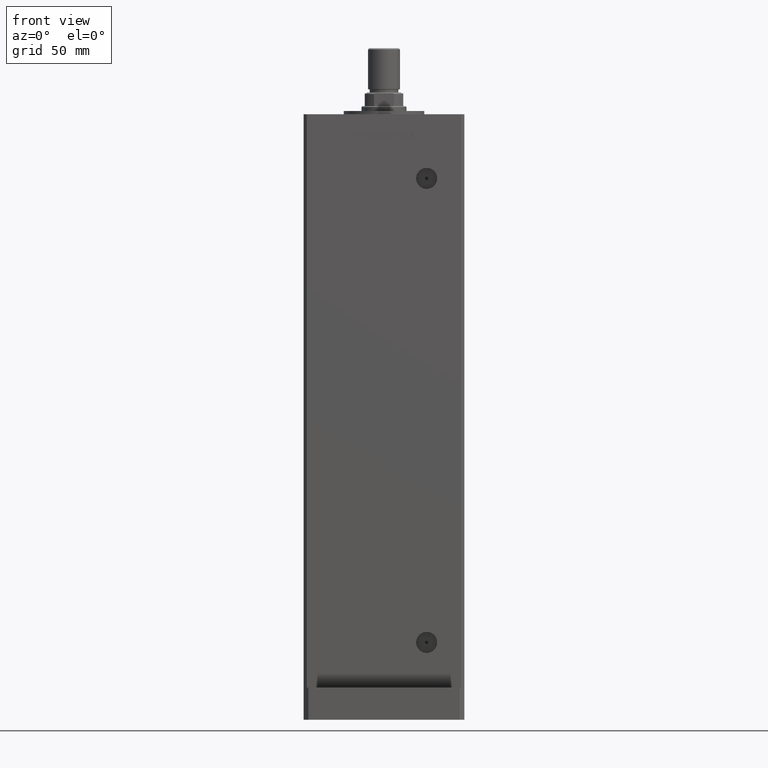
[diagram: clean part render]
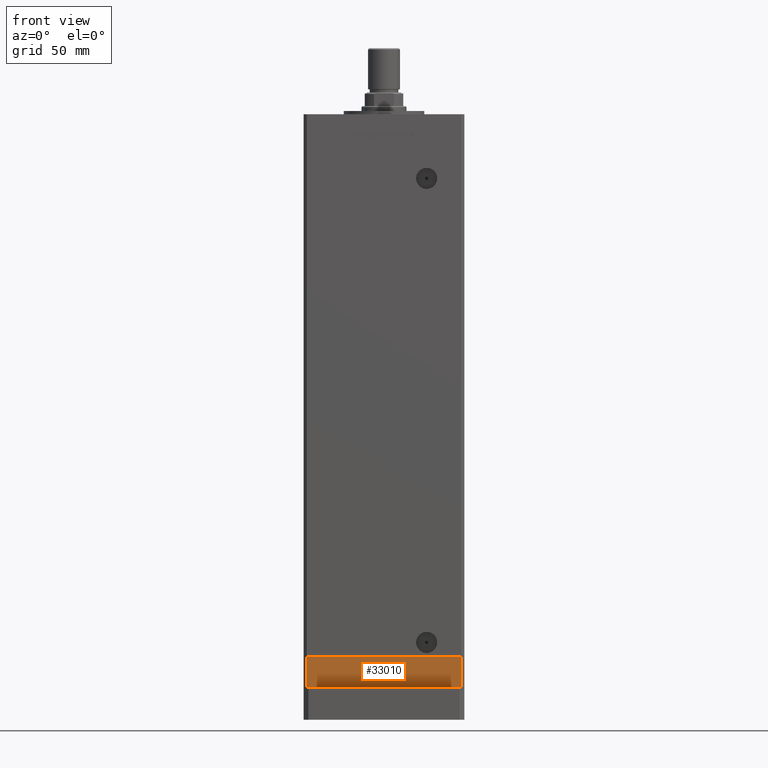
[diagram: same view with one face highlighted and labeled with its STEP entity id]
A machine part, front view. The second image highlights one B-rep face of the part: STEP entity #33010.
In plain terms, the highlighted planar face has unit normal (0, -1, -0).
Its self-contained STEP definition (entity closure, byte-faithful):
#320 = CARTESIAN_POINT ( 'NONE',  ( -47.99999999999999289, -43.50000000000001421, -19.00000000000000000 ) ) ;
#1289 = VECTOR ( 'NONE', #21357, 1000.000000000000000 ) ;
#1321 = LINE ( 'NONE', #47035, #40491 ) ;
#3622 = CARTESIAN_POINT ( 'NONE',  ( 47.99999999999999289, -43.50000000000001421, 0.000000000000000000 ) ) ;
#4111 = VECTOR ( 'NONE', #39441, 1000.000000000000000 ) ;
#9412 = CARTESIAN_POINT ( 'NONE',  ( 47.99999999999999289, -43.50000000000001421, -19.00000000000000000 ) ) ;
#14346 = DIRECTION ( 'NONE',  ( 0.000000000000000000, 0.000000000000000000, 1.000000000000000000 ) ) ;
#14915 = VERTEX_POINT ( 'NONE', #18060 ) ;
#17375 = VECTOR ( 'NONE', #14346, 1000.000000000000000 ) ;
#18060 = CARTESIAN_POINT ( 'NONE',  ( -47.99999999999999289, -43.50000000000001421, 0.000000000000000000 ) ) ;
#18200 = EDGE_CURVE ( 'NONE', #14915, #38504, #33980, .T. ) ;
#18432 = LINE ( 'NONE', #9412, #17375 ) ;
#21357 = DIRECTION ( 'NONE',  ( 0.000000000000000000, 0.000000000000000000, 1.000000000000000000 ) ) ;
#21439 = DIRECTION ( 'NONE',  ( 0.000000000000000000, -0.000000000000000000, -1.000000000000000000 ) ) ;
#21544 = EDGE_CURVE ( 'NONE', #22603, #38504, #18432, .T. ) ;
#22603 = VERTEX_POINT ( 'NONE', #38028 ) ;
#22738 = ORIENTED_EDGE ( 'NONE', *, *, #41641, .F. ) ;
#25183 = ORIENTED_EDGE ( 'NONE', *, *, #21544, .T. ) ;
#26375 = FACE_OUTER_BOUND ( 'NONE', #33647, .T. ) ;
#26500 = DIRECTION ( 'NONE',  ( 1.000000000000000000, 0.000000000000000000, 0.000000000000000000 ) ) ;
#28261 = AXIS2_PLACEMENT_3D ( 'NONE', #50764, #37605, #21439 ) ;
#33010 = ADVANCED_FACE ( 'NONE', ( #26375 ), #50491, .T. ) ;
#33647 = EDGE_LOOP ( 'NONE', ( #46594, #22738, #43155, #25183 ) ) ;
#33980 = LINE ( 'NONE', #42476, #4111 ) ;
#36995 = EDGE_CURVE ( 'NONE', #43178, #22603, #1321, .T. ) ;
#37605 = DIRECTION ( 'NONE',  ( 0.000000000000000000, -1.000000000000000000, 0.000000000000000000 ) ) ;
#38028 = CARTESIAN_POINT ( 'NONE',  ( 47.99999999999999289, -43.50000000000001421, -19.00000000000000000 ) ) ;
#38504 = VERTEX_POINT ( 'NONE', #3622 ) ;
#39441 = DIRECTION ( 'NONE',  ( 1.000000000000000000, 0.000000000000000000, 0.000000000000000000 ) ) ;
#40491 = VECTOR ( 'NONE', #26500, 1000.000000000000000 ) ;
#41641 = EDGE_CURVE ( 'NONE', #43178, #14915, #51216, .T. ) ;
#42476 = CARTESIAN_POINT ( 'NONE',  ( -47.99999999999999289, -43.50000000000001421, 0.000000000000000000 ) ) ;
#43155 = ORIENTED_EDGE ( 'NONE', *, *, #36995, .T. ) ;
#43178 = VERTEX_POINT ( 'NONE', #43999 ) ;
#43999 = CARTESIAN_POINT ( 'NONE',  ( -47.99999999999999289, -43.50000000000001421, -19.00000000000000000 ) ) ;
#46594 = ORIENTED_EDGE ( 'NONE', *, *, #18200, .F. ) ;
#47035 = CARTESIAN_POINT ( 'NONE',  ( -47.99999999999999289, -43.50000000000001421, -19.00000000000000000 ) ) ;
#50491 = PLANE ( 'NONE',  #28261 ) ;
#50764 = CARTESIAN_POINT ( 'NONE',  ( -47.99999999999999289, -43.50000000000001421, -19.00000000000000000 ) ) ;
#51216 = LINE ( 'NONE', #320, #1289 ) ;